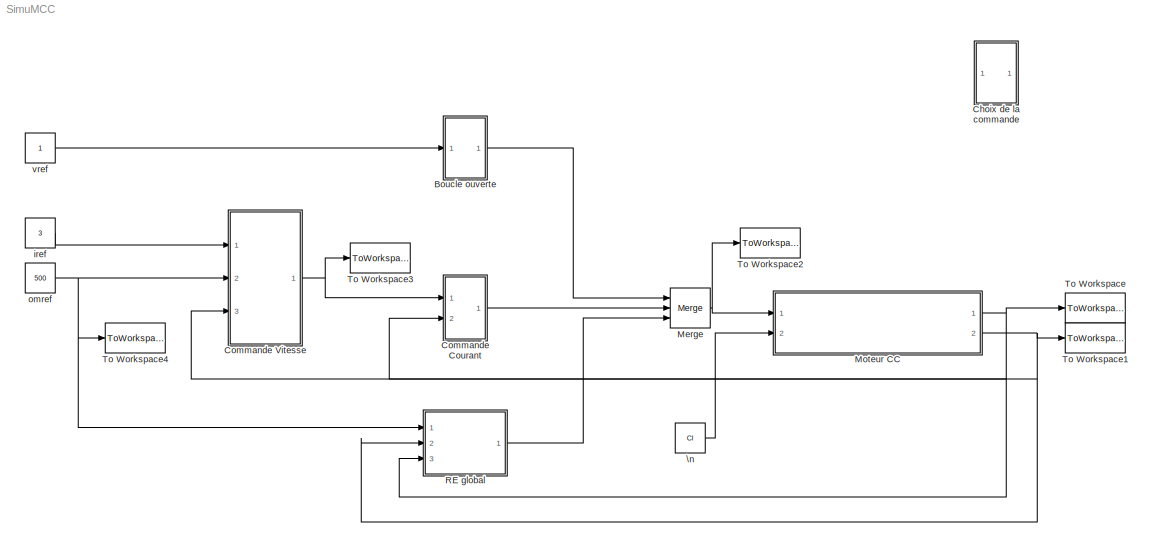
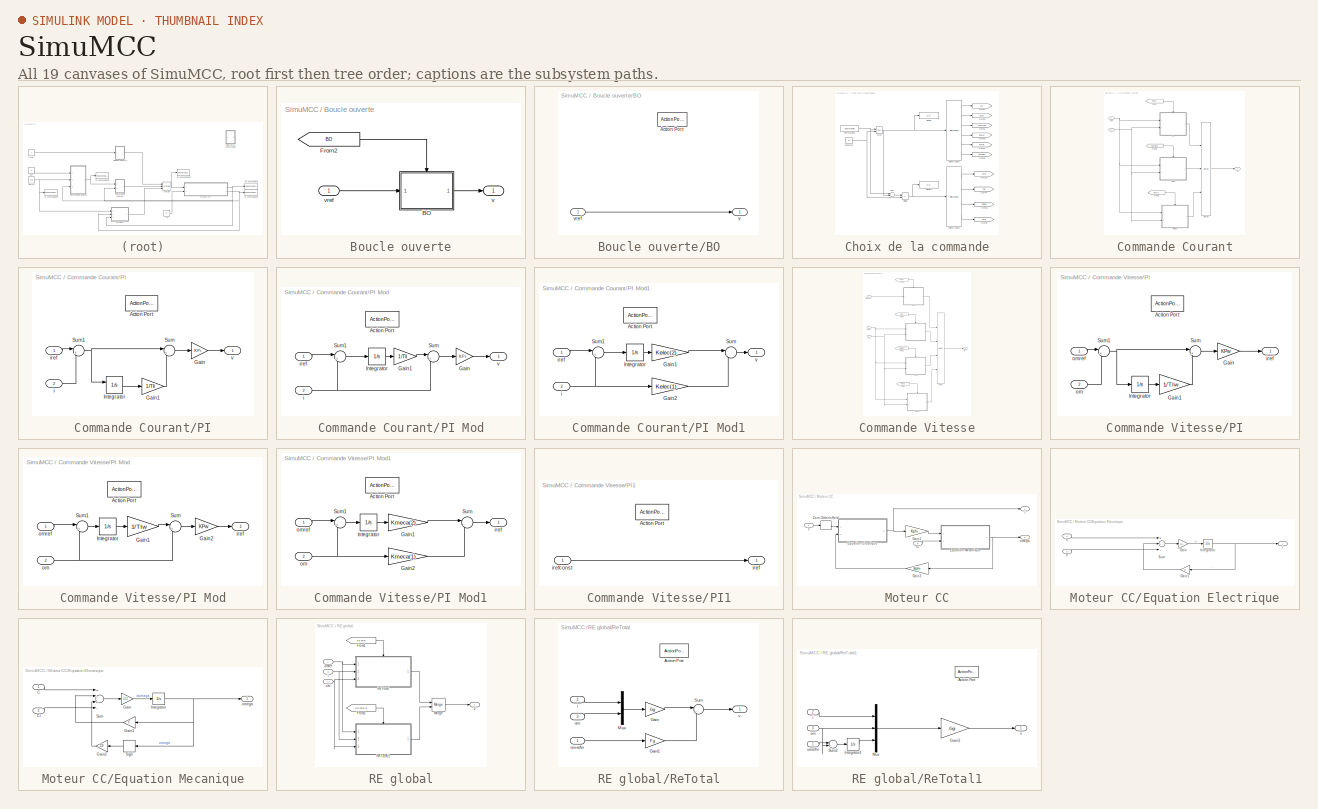
[diagram: thumbnail index - all 19 canvases of the model, root first then tree order]
MODEL SimuMCC
KIND model
BLOCK [SubSystem] Boucle ouverte
  Ports = [1, 1]
  RequestExecContextInheritance = off
  SID = 238
  Variant = off
BLOCK [SubSystem] Boucle ouverte/BO
  Ports = [1, 1, 0, 0, 0, 0, 0, 1]
  RequestExecContextInheritance = off
  SID = 111
  TreatAsAtomicUnit = on
  Variant = off
BLOCK [ActionPort] Boucle ouverte/BO/Action Port
  ActionType = case
  SID = 114
BLOCK [Outport] Boucle ouverte/BO/v
  IconDisplay = Port number
  SID = 120
BLOCK [Inport] Boucle ouverte/BO/vref
  IconDisplay = Port number
  SID = 112
BLOCK [From] Boucle ouverte/From2
  GotoTag = BO
  SID = 110
  TagVisibility = global
BLOCK [Outport] Boucle ouverte/v
  IconDisplay = Port number
  SID = 240
BLOCK [Inport] Boucle ouverte/vref
  IconDisplay = Port number
  SID = 239
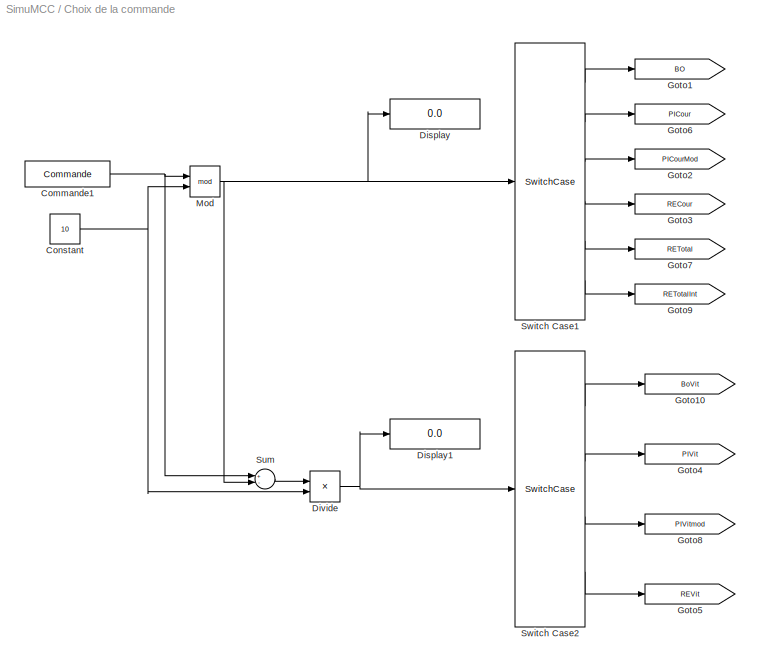
BLOCK [SubSystem] Choix de la commande
  Ports = []
  RequestExecContextInheritance = off
  SID = 49
  Variant = off
BLOCK [Constant] Choix de la commande/Commande1
  SID = 48
  Value = Commande
BLOCK [Constant] Choix de la commande/Constant
  SID = 211
  Value = 10
BLOCK [Display] Choix de la commande/Display
  Decimation = 1
  Ports = [1]
  SID = 236
BLOCK [Display] Choix de la commande/Display1
  Decimation = 1
  Ports = [1]
  SID = 237
BLOCK [Product] Choix de la commande/Divide
  InputSameDT = off
  Inputs = */
  OutDataTypeStr = Inherit: Inherit via internal rule
  Ports = [2, 1]
  RndMeth = Floor
  SID = 213
  SaturateOnIntegerOverflow = off
BLOCK [Goto] Choix de la commande/Goto1
  GotoTag = BO
  SID = 61
  TagVisibility = global
BLOCK [Goto] Choix de la commande/Goto10
  GotoTag = BoVit
  SID = 270
  TagVisibility = global
BLOCK [Goto] Choix de la commande/Goto2
  GotoTag = PICourMod
  SID = 87
  TagVisibility = global
BLOCK [Goto] Choix de la commande/Goto3
  GotoTag = RECour
  SID = 144
  TagVisibility = global
BLOCK [Goto] Choix de la commande/Goto4
  GotoTag = PIVit
  SID = 200
  TagVisibility = global
BLOCK [Goto] Choix de la commande/Goto5
  GotoTag = REVit
  SID = 201
  TagVisibility = global
BLOCK [Goto] Choix de la commande/Goto6
  GotoTag = PICour
  SID = 43
  TagVisibility = global
BLOCK [Goto] Choix de la commande/Goto7
  GotoTag = RETotal
  SID = 209
  TagVisibility = global
BLOCK [Goto] Choix de la commande/Goto8
  GotoTag = PIVitmod
  SID = 203
  TagVisibility = global
BLOCK [Goto] Choix de la commande/Goto9
  GotoTag = RETotalInt
  SID = 266
  TagVisibility = global
BLOCK [Math] Choix de la commande/Mod
  Operator = mod
  Ports = [2, 1]
  SID = 210
BLOCK [Sum] Choix de la commande/Sum
  InputSameDT = off
  Inputs = +-
  OutDataTypeStr = Inherit: Inherit via internal rule
  Ports = [2, 1]
  SID = 212
  SaturateOnIntegerOverflow = off
BLOCK [SwitchCase] Choix de la commande/Switch Case1
  CaseConditions = {0, 1,2,3,4,5}
  Ports = [1, 6]
  SID = 46
  ShowDefaultCase = off
BLOCK [SwitchCase] Choix de la commande/Switch Case2
  CaseConditions = {0,1,2,3}
  Ports = [1, 4]
  SID = 204
  ShowDefaultCase = off
BLOCK [SubSystem] Commande Courant
  Ports = [2, 1]
  RequestExecContextInheritance = off
  SID = 63
  Variant = off
BLOCK [From] Commande Courant/From
  GotoTag = PICour
  SID = 62
  TagVisibility = global
BLOCK [From] Commande Courant/From1
  GotoTag = PICourMod
  SID = 73
  TagVisibility = global
BLOCK [From] Commande Courant/From2
  GotoTag = RECour
  SID = 133
  TagVisibility = global
BLOCK [Merge] Commande Courant/Merge
  Inputs = 3
  Ports = [3, 1]
  SID = 124
BLOCK [SubSystem] Commande Courant/PI
  Ports = [2, 1, 0, 0, 0, 0, 0, 1]
  RequestExecContextInheritance = off
  SID = 50
  TreatAsAtomicUnit = on
  Variant = off
BLOCK [SubSystem] Commande Courant/PI Mod
  Ports = [2, 1, 0, 0, 0, 0, 0, 1]
  RequestExecContextInheritance = off
  SID = 74
  TreatAsAtomicUnit = on
  Variant = off
BLOCK [ActionPort] Commande Courant/PI Mod/Action Port
  ActionType = case
  SID = 86
BLOCK [Gain] Commande Courant/PI Mod/Gain
  Gain = KPi
  OutDataTypeStr = Inherit: Inherit via internal rule
  ParamDataTypeStr = Inherit: Inherit via internal rule
  SID = 127
  SaturateOnIntegerOverflow = off
BLOCK [Gain] Commande Courant/PI Mod/Gain1
  Gain = 1/TIi
  OutDataTypeStr = Inherit: Inherit via internal rule
  ParamDataTypeStr = Inherit: Inherit via internal rule
  SID = 128
  SaturateOnIntegerOverflow = off
BLOCK [Integrator] Commande Courant/PI Mod/Integrator
  Ports = [1, 1]
  SID = 129
BLOCK [Sum] Commande Courant/PI Mod/Sum
  IconShape = round
  InputSameDT = off
  Inputs = |+-
  OutDataTypeStr = Inherit: Inherit via internal rule
  Ports = [2, 1]
  SID = 130
  SaturateOnIntegerOverflow = off
BLOCK [Sum] Commande Courant/PI Mod/Sum1
  IconShape = round
  InputSameDT = off
  Inputs = |+-
  OutDataTypeStr = Inherit: Inherit via internal rule
  Ports = [2, 1]
  SID = 131
  SaturateOnIntegerOverflow = off
BLOCK [Inport] Commande Courant/PI Mod/i
  IconDisplay = Port number
  Port = 2
  SID = 76
BLOCK [Inport] Commande Courant/PI Mod/iref
  IconDisplay = Port number
  SID = 75
BLOCK [Outport] Commande Courant/PI Mod/v
  IconDisplay = Port number
  SID = 78
BLOCK [SubSystem] Commande Courant/PI Mod1
  Ports = [2, 1, 0, 0, 0, 0, 0, 1]
  RequestExecContextInheritance = off
  SID = 134
  TreatAsAtomicUnit = on
  Variant = off
BLOCK [ActionPort] Commande Courant/PI Mod1/Action Port
  ActionType = case
  SID = 137
BLOCK [Gain] Commande Courant/PI Mod1/Gain1
  Gain = Kelec(2)
  OutDataTypeStr = Inherit: Inherit via internal rule
  ParamDataTypeStr = Inherit: Inherit via internal rule
  SID = 139
  SaturateOnIntegerOverflow = off
BLOCK [Gain] Commande Courant/PI Mod1/Gain2
  Gain = Kelec(1)
  OutDataTypeStr = Inherit: Inherit via internal rule
  ParamDataTypeStr = Inherit: Inherit via internal rule
  SID = 146
  SaturateOnIntegerOverflow = off
BLOCK [Integrator] Commande Courant/PI Mod1/Integrator
  Ports = [1, 1]
  SID = 140
BLOCK [Sum] Commande Courant/PI Mod1/Sum
  IconShape = round
  InputSameDT = off
  Inputs = |--
  OutDataTypeStr = Inherit: Inherit via internal rule
  Ports = [2, 1]
  SID = 141
  SaturateOnIntegerOverflow = off
BLOCK [Sum] Commande Courant/PI Mod1/Sum1
  IconShape = round
  InputSameDT = off
  Inputs = |+-
  OutDataTypeStr = Inherit: Inherit via internal rule
  Ports = [2, 1]
  SID = 142
  SaturateOnIntegerOverflow = off
BLOCK [Inport] Commande Courant/PI Mod1/i
  IconDisplay = Port number
  Port = 2
  SID = 136
BLOCK [Inport] Commande Courant/PI Mod1/iref
  IconDisplay = Port number
  SID = 135
BLOCK [Outport] Commande Courant/PI Mod1/v
  IconDisplay = Port number
  SID = 143
BLOCK [ActionPort] Commande Courant/PI/Action Port
  ActionType = case
  SID = 52
BLOCK [Gain] Commande Courant/PI/Gain
  Gain = KPi
  OutDataTypeStr = Inherit: Inherit via internal rule
  ParamDataTypeStr = Inherit: Inherit via internal rule
  SID = 81
  SaturateOnIntegerOverflow = off
BLOCK [Gain] Commande Courant/PI/Gain1
  Gain = 1/TIi
  OutDataTypeStr = Inherit: Inherit via internal rule
  ParamDataTypeStr = Inherit: Inherit via internal rule
  SID = 84
  SaturateOnIntegerOverflow = off
BLOCK [Integrator] Commande Courant/PI/Integrator
  ExternalReset = rising
  Ports = [2, 1]
  SID = 85
BLOCK [Sum] Commande Courant/PI/Sum
  IconShape = round
  InputSameDT = off
  Inputs = |++
  OutDataTypeStr = Inherit: Inherit via internal rule
  Ports = [2, 1]
  SID = 82
  SaturateOnIntegerOverflow = off
BLOCK [Sum] Commande Courant/PI/Sum1
  IconShape = round
  InputSameDT = off
  Inputs = |+-
  OutDataTypeStr = Inherit: Inherit via internal rule
  Ports = [2, 1]
  SID = 83
  SaturateOnIntegerOverflow = off
BLOCK [Inport] Commande Courant/PI/i
  IconDisplay = Port number
  Port = 2
  SID = 68
BLOCK [Inport] Commande Courant/PI/iref
  IconDisplay = Port number
  SID = 67
BLOCK [Outport] Commande Courant/PI/v
  IconDisplay = Port number
  SID = 69
BLOCK [Inport] Commande Courant/i
  IconDisplay = Port number
  Port = 2
  SID = 65
BLOCK [Inport] Commande Courant/iref
  IconDisplay = Port number
  SID = 64
BLOCK [Outport] Commande Courant/v
  IconDisplay = Port number
  SID = 66
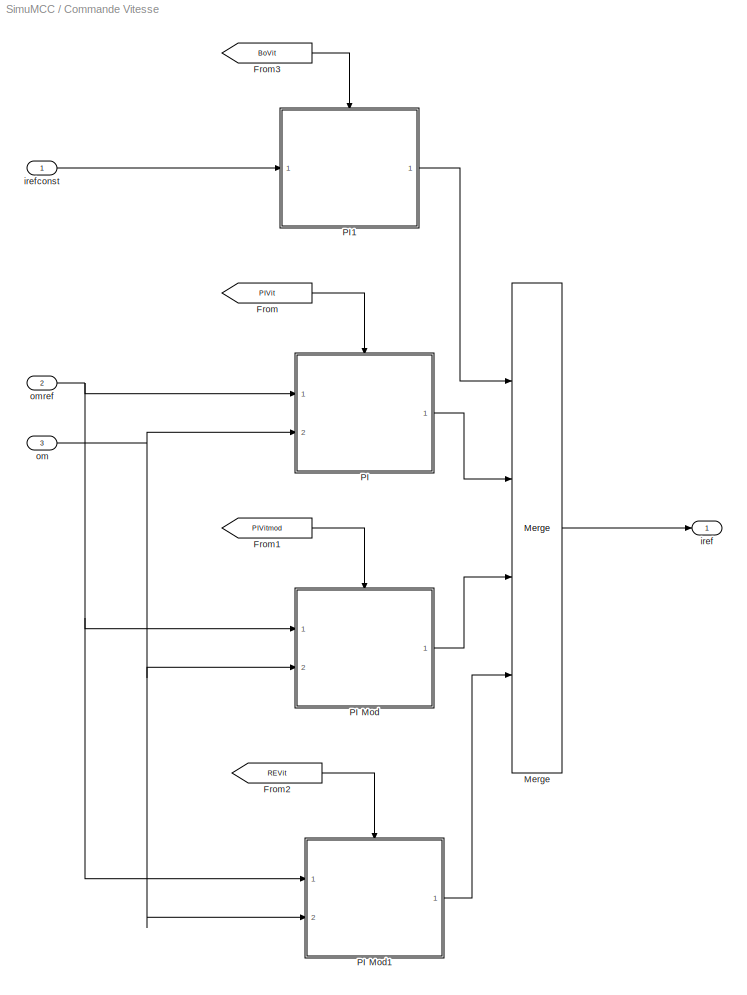
BLOCK [SubSystem] Commande Vitesse
  Ports = [3, 1]
  RequestExecContextInheritance = off
  SID = 148
  Variant = off
BLOCK [From] Commande Vitesse/From
  GotoTag = PIVit
  SID = 151
  TagVisibility = global
BLOCK [From] Commande Vitesse/From1
  GotoTag = PIVitmod
  SID = 152
  TagVisibility = global
BLOCK [From] Commande Vitesse/From2
  GotoTag = REVit
  SID = 153
  TagVisibility = global
BLOCK [From] Commande Vitesse/From3
  GotoTag = BoVit
  SID = 271
  TagVisibility = global
BLOCK [Merge] Commande Vitesse/Merge
  Inputs = 4
  Ports = [4, 1]
  SID = 154
BLOCK [SubSystem] Commande Vitesse/PI
  Ports = [2, 1, 0, 0, 0, 0, 0, 1]
  RequestExecContextInheritance = off
  SID = 155
  TreatAsAtomicUnit = on
  Variant = off
BLOCK [SubSystem] Commande Vitesse/PI Mod
  Ports = [2, 1, 0, 0, 0, 0, 0, 1]
  RequestExecContextInheritance = off
  SID = 165
  TreatAsAtomicUnit = on
  Variant = off
BLOCK [ActionPort] Commande Vitesse/PI Mod/Action Port
  ActionType = case
  SID = 168
BLOCK [Gain] Commande Vitesse/PI Mod/Gain1
  Gain = 1/TIw
  OutDataTypeStr = Inherit: Inherit via internal rule
  ParamDataTypeStr = Inherit: Inherit via internal rule
  SID = 198
  SaturateOnIntegerOverflow = off
BLOCK [Gain] Commande Vitesse/PI Mod/Gain2
  Gain = KPw
  OutDataTypeStr = Inherit: Inherit via internal rule
  ParamDataTypeStr = Inherit: Inherit via internal rule
  SID = 191
  SaturateOnIntegerOverflow = off
BLOCK [Integrator] Commande Vitesse/PI Mod/Integrator
  Ports = [1, 1]
  SID = 171
BLOCK [Sum] Commande Vitesse/PI Mod/Sum
  IconShape = round
  InputSameDT = off
  Inputs = |+-
  OutDataTypeStr = Inherit: Inherit via internal rule
  Ports = [2, 1]
  SID = 172
  SaturateOnIntegerOverflow = off
BLOCK [Sum] Commande Vitesse/PI Mod/Sum1
  IconShape = round
  InputSameDT = off
  Inputs = |+-
  OutDataTypeStr = Inherit: Inherit via internal rule
  Ports = [2, 1]
  SID = 173
  SaturateOnIntegerOverflow = off
BLOCK [Outport] Commande Vitesse/PI Mod/iref
  IconDisplay = Port number
  SID = 197
BLOCK [Inport] Commande Vitesse/PI Mod/om
  IconDisplay = Port number
  Port = 2
  SID = 190
BLOCK [Inport] Commande Vitesse/PI Mod/omref
  IconDisplay = Port number
  SID = 189
BLOCK [SubSystem] Commande Vitesse/PI Mod1
  Ports = [2, 1, 0, 0, 0, 0, 0, 1]
  RequestExecContextInheritance = off
  SID = 175
  TreatAsAtomicUnit = on
  Variant = off
BLOCK [ActionPort] Commande Vitesse/PI Mod1/Action Port
  ActionType = case
  SID = 178
BLOCK [Gain] Commande Vitesse/PI Mod1/Gain1
  Gain = Kmeca(2)
  OutDataTypeStr = Inherit: Inherit via internal rule
  ParamDataTypeStr = Inherit: Inherit via internal rule
  SID = 179
  SaturateOnIntegerOverflow = off
BLOCK [Gain] Commande Vitesse/PI Mod1/Gain2
  Gain = Kmeca(1)
  OutDataTypeStr = Inherit: Inherit via internal rule
  ParamDataTypeStr = Inherit: Inherit via internal rule
  SID = 180
  SaturateOnIntegerOverflow = off
BLOCK [Integrator] Commande Vitesse/PI Mod1/Integrator
  Ports = [1, 1]
  SID = 181
BLOCK [Sum] Commande Vitesse/PI Mod1/Sum
  IconShape = round
  InputSameDT = off
  Inputs = |--
  OutDataTypeStr = Inherit: Inherit via internal rule
  Ports = [2, 1]
  SID = 182
  SaturateOnIntegerOverflow = off
BLOCK [Sum] Commande Vitesse/PI Mod1/Sum1
  IconShape = round
  InputSameDT = off
  Inputs = |+-
  OutDataTypeStr = Inherit: Inherit via internal rule
  Ports = [2, 1]
  SID = 183
  SaturateOnIntegerOverflow = off
BLOCK [Outport] Commande Vitesse/PI Mod1/iref
  IconDisplay = Port number
  SID = 184
BLOCK [Inport] Commande Vitesse/PI Mod1/om
  IconDisplay = Port number
  Port = 2
  SID = 177
BLOCK [Inport] Commande Vitesse/PI Mod1/omref
  IconDisplay = Port number
  SID = 176
BLOCK [ActionPort] Commande Vitesse/PI/Action Port
  ActionType = case
  SID = 158
BLOCK [Gain] Commande Vitesse/PI/Gain
  Gain = KPw
  OutDataTypeStr = Inherit: Inherit via internal rule
  ParamDataTypeStr = Inherit: Inherit via internal rule
  SID = 159
  SaturateOnIntegerOverflow = off
BLOCK [Gain] Commande Vitesse/PI/Gain1
  Gain = 1/TIw
  OutDataTypeStr = Inherit: Inherit via internal rule
  ParamDataTypeStr = Inherit: Inherit via internal rule
  SID = 160
  SaturateOnIntegerOverflow = off
BLOCK [Integrator] Commande Vitesse/PI/Integrator
  Ports = [1, 1]
  SID = 161
BLOCK [Sum] Commande Vitesse/PI/Sum
  IconShape = round
  InputSameDT = off
  Inputs = |++
  OutDataTypeStr = Inherit: Inherit via internal rule
  Ports = [2, 1]
  SID = 162
  SaturateOnIntegerOverflow = off
BLOCK [Sum] Commande Vitesse/PI/Sum1
  IconShape = round
  InputSameDT = off
  Inputs = |+-
  OutDataTypeStr = Inherit: Inherit via internal rule
  Ports = [2, 1]
  SID = 163
  SaturateOnIntegerOverflow = off
BLOCK [Outport] Commande Vitesse/PI/iref
  IconDisplay = Port number
  SID = 164
BLOCK [Inport] Commande Vitesse/PI/om
  IconDisplay = Port number
  Port = 2
  SID = 157
BLOCK [Inport] Commande Vitesse/PI/omref
  IconDisplay = Port number
  SID = 156
BLOCK [SubSystem] Commande Vitesse/PI1
  Ports = [1, 1, 0, 0, 0, 0, 0, 1]
  RequestExecContextInheritance = off
  SID = 222
  TreatAsAtomicUnit = on
  Variant = off
BLOCK [ActionPort] Commande Vitesse/PI1/Action Port
  ActionType = case
  SID = 225
BLOCK [Outport] Commande Vitesse/PI1/iref
  IconDisplay = Port number
  SID = 231
BLOCK [Inport] Commande Vitesse/PI1/irefconst
  IconDisplay = Port number
  SID = 223
BLOCK [Outport] Commande Vitesse/iref
  IconDisplay = Port number
  SID = 185
BLOCK [Inport] Commande Vitesse/irefconst
  IconDisplay = Port number
  SID = 232
BLOCK [Inport] Commande Vitesse/om
  IconDisplay = Port number
  Port = 3
  SID = 150
BLOCK [Inport] Commande Vitesse/omref
  IconDisplay = Port number
  Port = 2
  SID = 149
BLOCK [Merge] Merge
  Inputs = 3
  Ports = [3, 1]
  SID = 70
BLOCK [SubSystem] Moteur CC
  Ports = [2, 2]
  RequestExecContextInheritance = off
  SID = 29
  Variant = off
BLOCK [Inport] Moteur CC/Cl
  IconDisplay = Port number
  Port = 2
  SID = 207
BLOCK [SubSystem] Moteur CC/Equation Electrique
  Ports = [2, 1]
  RequestExecContextInheritance = off
  SID = 9
  Variant = off
BLOCK [Gain] Moteur CC/Equation Electrique/Gain
  Gain = 1/L
  OutDataTypeStr = Inherit: Inherit via internal rule
  ParamDataTypeStr = Inherit: Inherit via internal rule
  SID = 2
  SaturateOnIntegerOverflow = off
BLOCK [Gain] Moteur CC/Equation Electrique/Gain1
  Gain = R
  OutDataTypeStr = Inherit: Inherit via internal rule
  ParamDataTypeStr = Inherit: Inherit via internal rule
  SID = 6
  SaturateOnIntegerOverflow = off
BLOCK [Integrator] Moteur CC/Equation Electrique/Integrator
  Ports = [1, 1]
  SID = 1
BLOCK [Sum] Moteur CC/Equation Electrique/Sum
  InputSameDT = off
  Inputs = +--
  OutDataTypeStr = Inherit: Inherit via internal rule
  Ports = [3, 1]
  SID = 4
  SaturateOnIntegerOverflow = off
BLOCK [Inport] Moteur CC/Equation Electrique/e
  IconDisplay = Port number
  Port = 2
  SID = 11
BLOCK [Outport] Moteur CC/Equation Electrique/i
  IconDisplay = Port number
  SID = 12
BLOCK [Inport] Moteur CC/Equation Electrique/v
  IconDisplay = Port number
  SID = 10
BLOCK [SubSystem] Moteur CC/Equation Mecanique
  Ports = [2, 1]
  RequestExecContextInheritance = off
  SID = 13
  Variant = off
BLOCK [Inport] Moteur CC/Equation Mecanique/C
  IconDisplay = Port number
  SID = 14
BLOCK [Inport] Moteur CC/Equation Mecanique/Cl
  IconDisplay = Port number
  Port = 2
  SID = 206
BLOCK [Gain] Moteur CC/Equation Mecanique/Gain
  Gain = 1/J
  OutDataTypeStr = Inherit: Inherit via internal rule
  ParamDataTypeStr = Inherit: Inherit via internal rule
  SID = 16
  SaturateOnIntegerOverflow = off
BLOCK [Gain] Moteur CC/Equation Mecanique/Gain1
  Gain = F
  OutDataTypeStr = Inherit: Inherit via internal rule
  ParamDataTypeStr = Inherit: Inherit via internal rule
  SID = 17
  SaturateOnIntegerOverflow = off
BLOCK [Gain] Moteur CC/Equation Mecanique/Gain2
  Gain = C0
  OutDataTypeStr = Inherit: Inherit via internal rule
  ParamDataTypeStr = Inherit: Inherit via internal rule
  SID = 22
  SaturateOnIntegerOverflow = off
BLOCK [Integrator] Moteur CC/Equation Mecanique/Integrator
  Ports = [1, 1]
  SID = 18
BLOCK [Signum] Moteur CC/Equation Mecanique/Sign
  SID = 21
BLOCK [Sum] Moteur CC/Equation Mecanique/Sum
  InputSameDT = off
  Inputs = +-+-
  OutDataTypeStr = Inherit: Inherit via internal rule
  Ports = [4, 1]
  SID = 19
  SaturateOnIntegerOverflow = off
BLOCK [Outport] Moteur CC/Equation Mecanique/omega
  IconDisplay = Port number
  SID = 20
BLOCK [Gain] Moteur CC/Gain1
  Gain = Kphi
  OutDataTypeStr = Inherit: Inherit via internal rule
  ParamDataTypeStr = Inherit: Inherit via internal rule
  SID = 147
  SaturateOnIntegerOverflow = off
BLOCK [Gain] Moteur CC/Gain3  
  Gain = Kphi
  OutDataTypeStr = Inherit: Inherit via internal rule
  ParamDataTypeStr = Inherit: Inherit via internal rule
  SID = 27
  SaturateOnIntegerOverflow = off
BLOCK [ZeroOrderHold] Moteur CC/Zero-Order\nHold
  SID = 272
  SampleTime = Ts
BLOCK [Outport] Moteur CC/i
  IconDisplay = Port number
  SID = 31
BLOCK [Outport] Moteur CC/omega
  IconDisplay = Port number
  Port = 2
  SID = 32
BLOCK [Inport] Moteur CC/v
  IconDisplay = Port number
  SID = 30
BLOCK [SubSystem] RE global
  Ports = [3, 1]
  RequestExecContextInheritance = off
  SID = 241
  Variant = off
BLOCK [From] RE global/From1
  GotoTag = RETotal
  SID = 218
  TagVisibility = global
BLOCK [From] RE global/From2
  GotoTag = RETotalInt
  SID = 253
  TagVisibility = global
BLOCK [Merge] RE global/Merge
  Ports = [2, 1]
  SID = 265
BLOCK [SubSystem] RE global/ReTotal
  Ports = [3, 1, 0, 0, 0, 0, 0, 1]
  RequestExecContextInheritance = off
  SID = 214
  TreatAsAtomicUnit = on
  Variant = off
BLOCK [Inport] RE global/ReTotal/ i
  IconDisplay = Port number
  Port = 2
  SID = 235
BLOCK [Inport] RE global/ReTotal/ om
  IconDisplay = Port number
  Port = 3
  SID = 234
BLOCK [ActionPort] RE global/ReTotal/Action Port
  ActionType = case
  SID = 216
BLOCK [Gain] RE global/ReTotal/Gain
  Gain = Gg
  Multiplication = Matrix(K*u)
  OutDataTypeStr = Inherit: Inherit via internal rule
  ParamDataTypeStr = Inherit: Inherit via internal rule
  SID = 247
  SaturateOnIntegerOverflow = off
BLOCK [Gain] RE global/ReTotal/Gain1
  Gain = Fg
  Multiplication = Matrix(K*u)
  OutDataTypeStr = Inherit: Inherit via internal rule
  ParamDataTypeStr = Inherit: Inherit via internal rule
  SID = 249
  SaturateOnIntegerOverflow = off
BLOCK [Mux] RE global/ReTotal/Mux
  DisplayOption = bar
  Inputs = 2
  Ports = [2, 1]
  SID = 246
BLOCK [Sum] RE global/ReTotal/Sum
  IconShape = round
  InputSameDT = off
  Inputs = |-+
  OutDataTypeStr = Inherit: Inherit via internal rule
  Ports = [2, 1]
  SID = 248
  SaturateOnIntegerOverflow = off
BLOCK [Inport] RE global/ReTotal/omref\n
  IconDisplay = Port number
  SID = 215
BLOCK [Outport] RE global/ReTotal/v
  IconDisplay = Port number
  SID = 217
BLOCK [SubSystem] RE global/ReTotal1
  Ports = [3, 1, 0, 0, 0, 0, 0, 1]
  RequestExecContextInheritance = off
  SID = 254
  TreatAsAtomicUnit = on
  Variant = off
BLOCK [Inport] RE global/ReTotal1/ i
  IconDisplay = Port number
  Port = 2
  SID = 256
BLOCK [Inport] RE global/ReTotal1/ om
  IconDisplay = Port number
  Port = 3
  SID = 257
BLOCK [ActionPort] RE global/ReTotal1/Action Port
  ActionType = case
  SID = 258
BLOCK [Gain] RE global/ReTotal1/Gain3
  Gain = -Ggi
  Multiplication = Matrix(K*u)
  OutDataTypeStr = Inherit: Inherit via internal rule
  ParamDataTypeStr = Inherit: Inherit via internal rule
  SID = 277
  SaturateOnIntegerOverflow = off
BLOCK [Integrator] RE global/ReTotal1/Integrator1
  Ports = [1, 1]
  SID = 279
BLOCK [Mux] RE global/ReTotal1/Mux
  DisplayOption = bar
  Inputs = 3
  Ports = [3, 1]
  SID = 261
BLOCK [Sum] RE global/ReTotal1/Sum2
  IconShape = round
  InputSameDT = off
  Inputs = |+-
  OutDataTypeStr = Inherit: Inherit via internal rule
  Ports = [2, 1]
  SID = 278
  SaturateOnIntegerOverflow = off
BLOCK [Inport] RE global/ReTotal1/omref\n
  IconDisplay = Port number
  SID = 255
BLOCK [Outport] RE global/ReTotal1/v
  IconDisplay = Port number
  SID = 263
BLOCK [Inport] RE global/i
  IconDisplay = Port number
  Port = 3
  SID = 244
BLOCK [Inport] RE global/om
  IconDisplay = Port number
  Port = 2
  SID = 243
BLOCK [Inport] RE global/omref
  IconDisplay = Port number
  SID = 242
BLOCK [Outport] RE global/v
  IconDisplay = Port number
  SID = 245
BLOCK [ToWorkspace] To Workspace
  FixptAsFi = on
  MaxDataPoints = inf
  Ports = [1]
  SID = 34
  SampleTime = -1
  Save2DSignal = 3-D array (concatenate along third dimension)
  SaveFormat = Timeseries
  VariableName = i
BLOCK [ToWorkspace] To Workspace1
  FixptAsFi = on
  MaxDataPoints = inf
  Ports = [1]
  SID = 35
  SampleTime = -1
  Save2DSignal = 3-D array (concatenate along third dimension)
  SaveFormat = Timeseries
  VariableName = omega
BLOCK [ToWorkspace] To Workspace2
  FixptAsFi = on
  MaxDataPoints = inf
  Ports = [1]
  SID = 36
  SampleTime = -1
  Save2DSignal = 3-D array (concatenate along third dimension)
  SaveFormat = Timeseries
  VariableName = v
BLOCK [ToWorkspace] To Workspace3
  FixptAsFi = on
  MaxDataPoints = inf
  Ports = [1]
  SID = 80
  SampleTime = -1
  Save2DSignal = 3-D array (concatenate along third dimension)
  SaveFormat = Timeseries
  VariableName = iref
BLOCK [ToWorkspace] To Workspace4
  FixptAsFi = on
  MaxDataPoints = inf
  Ports = [1]
  SID = 220
  SampleTime = -1
  Save2DSignal = 3-D array (concatenate along third dimension)
  SaveFormat = Timeseries
  VariableName = omref
BLOCK [Constant] \n
  SID = 208
  Value = Cl
BLOCK [Constant] iref
  SID = 221
  Value = 3
BLOCK [Constant] omref
  SID = 79
  Value = 500
BLOCK [Constant] vref
  SID = 122
LINE Boucle ouverte/BO/vref:1 -> Boucle ouverte/BO/v:1
LINE Boucle ouverte/BO:1 -> Boucle ouverte/v:1
LINE Boucle ouverte/From2:1 -> Boucle ouverte/BO:ifaction
LINE Boucle ouverte/vref:1 -> Boucle ouverte/BO:1
LINE Boucle ouverte:1 -> Merge:1
NET Choix de la commande/Commande1:1 -> Choix de la commande/Mod:1, Choix de la commande/Sum:1
NET Choix de la commande/Constant:1 -> Choix de la commande/Divide:2, Choix de la commande/Mod:2
NET Choix de la commande/Divide:1 -> Choix de la commande/Display1:1, Choix de la commande/Switch Case2:1
NET Choix de la commande/Mod:1 -> Choix de la commande/Display:1, Choix de la commande/Sum:2, Choix de la commande/Switch Case1:1
LINE Choix de la commande/Sum:1 -> Choix de la commande/Divide:1
LINE Choix de la commande/Switch Case1:1 -> Choix de la commande/Goto1:1
LINE Choix de la commande/Switch Case1:2 -> Choix de la commande/Goto6:1
LINE Choix de la commande/Switch Case1:3 -> Choix de la commande/Goto2:1
LINE Choix de la commande/Switch Case1:4 -> Choix de la commande/Goto3:1
LINE Choix de la commande/Switch Case1:5 -> Choix de la commande/Goto7:1
LINE Choix de la commande/Switch Case1:6 -> Choix de la commande/Goto9:1
LINE Choix de la commande/Switch Case2:1 -> Choix de la commande/Goto10:1
LINE Choix de la commande/Switch Case2:2 -> Choix de la commande/Goto4:1
LINE Choix de la commande/Switch Case2:3 -> Choix de la commande/Goto8:1
LINE Choix de la commande/Switch Case2:4 -> Choix de la commande/Goto5:1
LINE Commande Courant/From1:1 -> Commande Courant/PI Mod:ifaction
LINE Commande Courant/From2:1 -> Commande Courant/PI Mod1:ifaction
LINE Commande Courant/From:1 -> Commande Courant/PI:ifaction
LINE Commande Courant/Merge:1 -> Commande Courant/v:1
LINE Commande Courant/PI Mod/Gain1:1 -> Commande Courant/PI Mod/Sum:1
LINE Commande Courant/PI Mod/Gain:1 -> Commande Courant/PI Mod/v:1
LINE Commande Courant/PI Mod/Integrator:1 -> Commande Courant/PI Mod/Gain1:1
LINE Commande Courant/PI Mod/Sum1:1 -> Commande Courant/PI Mod/Integrator:1
LINE Commande Courant/PI Mod/Sum:1 -> Commande Courant/PI Mod/Gain:1
NET Commande Courant/PI Mod/i:1 -> Commande Courant/PI Mod/Sum1:2, Commande Courant/PI Mod/Sum:2
LINE Commande Courant/PI Mod/iref:1 -> Commande Courant/PI Mod/Sum1:1
LINE Commande Courant/PI Mod1/Gain1:1 -> Commande Courant/PI Mod1/Sum:1
LINE Commande Courant/PI Mod1/Gain2:1 -> Commande Courant/PI Mod1/Sum:2
LINE Commande Courant/PI Mod1/Integrator:1 -> Commande Courant/PI Mod1/Gain1:1
LINE Commande Courant/PI Mod1/Sum1:1 -> Commande Courant/PI Mod1/Integrator:1
LINE Commande Courant/PI Mod1/Sum:1 -> Commande Courant/PI Mod1/v:1
NET Commande Courant/PI Mod1/i:1 -> Commande Courant/PI Mod1/Gain2:1, Commande Courant/PI Mod1/Sum1:2
LINE Commande Courant/PI Mod1/iref:1 -> Commande Courant/PI Mod1/Sum1:1
LINE Commande Courant/PI Mod1:1 -> Commande Courant/Merge:3
LINE Commande Courant/PI Mod:1 -> Commande Courant/Merge:2
LINE Commande Courant/PI/Gain1:1 -> Commande Courant/PI/Sum:2
LINE Commande Courant/PI/Gain:1 -> Commande Courant/PI/v:1
LINE Commande Courant/PI/Integrator:1 -> Commande Courant/PI/Gain1:1
NET Commande Courant/PI/Sum1:1 -> Commande Courant/PI/Integrator:1, Commande Courant/PI/Sum:1
LINE Commande Courant/PI/Sum:1 -> Commande Courant/PI/Gain:1
LINE Commande Courant/PI/i:1 -> Commande Courant/PI/Sum1:2
LINE Commande Courant/PI/iref:1 -> Commande Courant/PI/Sum1:1
LINE Commande Courant/PI:1 -> Commande Courant/Merge:1
NET Commande Courant/i:1 -> Commande Courant/PI Mod1:2, Commande Courant/PI Mod:2, Commande Courant/PI:2
NET Commande Courant/iref:1 -> Commande Courant/PI Mod1:1, Commande Courant/PI Mod:1, Commande Courant/PI:1
LINE Commande Courant:1 -> Merge:2
LINE Commande Vitesse/From1:1 -> Commande Vitesse/PI Mod:ifaction
LINE Commande Vitesse/From2:1 -> Commande Vitesse/PI Mod1:ifaction
LINE Commande Vitesse/From3:1 -> Commande Vitesse/PI1:ifaction
LINE Commande Vitesse/From:1 -> Commande Vitesse/PI:ifaction
LINE Commande Vitesse/Merge:1 -> Commande Vitesse/iref:1
LINE Commande Vitesse/PI Mod/Gain1:1 -> Commande Vitesse/PI Mod/Sum:1
LINE Commande Vitesse/PI Mod/Gain2:1 -> Commande Vitesse/PI Mod/iref:1
LINE Commande Vitesse/PI Mod/Integrator:1 -> Commande Vitesse/PI Mod/Gain1:1
LINE Commande Vitesse/PI Mod/Sum1:1 -> Commande Vitesse/PI Mod/Integrator:1
LINE Commande Vitesse/PI Mod/Sum:1 -> Commande Vitesse/PI Mod/Gain2:1
NET Commande Vitesse/PI Mod/om:1 -> Commande Vitesse/PI Mod/Sum1:2, Commande Vitesse/PI Mod/Sum:2
LINE Commande Vitesse/PI Mod/omref:1 -> Commande Vitesse/PI Mod/Sum1:1
LINE Commande Vitesse/PI Mod1/Gain1:1 -> Commande Vitesse/PI Mod1/Sum:1
LINE Commande Vitesse/PI Mod1/Gain2:1 -> Commande Vitesse/PI Mod1/Sum:2
LINE Commande Vitesse/PI Mod1/Integrator:1 -> Commande Vitesse/PI Mod1/Gain1:1
LINE Commande Vitesse/PI Mod1/Sum1:1 -> Commande Vitesse/PI Mod1/Integrator:1
LINE Commande Vitesse/PI Mod1/Sum:1 -> Commande Vitesse/PI Mod1/iref:1
NET Commande Vitesse/PI Mod1/om:1 -> Commande Vitesse/PI Mod1/Gain2:1, Commande Vitesse/PI Mod1/Sum1:2
LINE Commande Vitesse/PI Mod1/omref:1 -> Commande Vitesse/PI Mod1/Sum1:1
LINE Commande Vitesse/PI Mod1:1 -> Commande Vitesse/Merge:4
LINE Commande Vitesse/PI Mod:1 -> Commande Vitesse/Merge:3
LINE Commande Vitesse/PI/Gain1:1 -> Commande Vitesse/PI/Sum:2
LINE Commande Vitesse/PI/Gain:1 -> Commande Vitesse/PI/iref:1
LINE Commande Vitesse/PI/Integrator:1 -> Commande Vitesse/PI/Gain1:1
NET Commande Vitesse/PI/Sum1:1 -> Commande Vitesse/PI/Integrator:1, Commande Vitesse/PI/Sum:1
LINE Commande Vitesse/PI/Sum:1 -> Commande Vitesse/PI/Gain:1
LINE Commande Vitesse/PI/om:1 -> Commande Vitesse/PI/Sum1:2
LINE Commande Vitesse/PI/omref:1 -> Commande Vitesse/PI/Sum1:1
LINE Commande Vitesse/PI1/irefconst:1 -> Commande Vitesse/PI1/iref:1
LINE Commande Vitesse/PI1:1 -> Commande Vitesse/Merge:1
LINE Commande Vitesse/PI:1 -> Commande Vitesse/Merge:2
LINE Commande Vitesse/irefconst:1 -> Commande Vitesse/PI1:1
NET Commande Vitesse/om:1 -> Commande Vitesse/PI Mod1:2, Commande Vitesse/PI Mod:2, Commande Vitesse/PI:2
NET Commande Vitesse/omref:1 -> Commande Vitesse/PI Mod1:1, Commande Vitesse/PI Mod:1, Commande Vitesse/PI:1
NET Commande Vitesse:1 -> Commande Courant:1, To Workspace3:1
NET Merge:1 -> Moteur CC:1, To Workspace2:1
LINE Moteur CC/Cl:1 -> Moteur CC/Equation Mecanique:2
LINE Moteur CC/Equation Electrique/Gain1:1 -> Moteur CC/Equation Electrique/Sum:2
LINE Moteur CC/Equation Electrique/Gain:1 -> Moteur CC/Equation Electrique/Integrator:1
NET Moteur CC/Equation Electrique/Integrator:1 -> Moteur CC/Equation Electrique/Gain1:1, Moteur CC/Equation Electrique/i:1
LINE Moteur CC/Equation Electrique/Sum:1 -> Moteur CC/Equation Electrique/Gain:1
LINE Moteur CC/Equation Electrique/e:1 -> Moteur CC/Equation Electrique/Sum:3
LINE Moteur CC/Equation Electrique/v:1 -> Moteur CC/Equation Electrique/Sum:1
NET Moteur CC/Equation Electrique:1 -> Moteur CC/Gain1:1, Moteur CC/i:1
LINE Moteur CC/Equation Mecanique/C:1 -> Moteur CC/Equation Mecanique/Sum:1
LINE Moteur CC/Equation Mecanique/Cl:1 -> Moteur CC/Equation Mecanique/Sum:4
LINE Moteur CC/Equation Mecanique/Gain1:1 -> Moteur CC/Equation Mecanique/Sum:2
LINE Moteur CC/Equation Mecanique/Gain2:1 -> Moteur CC/Equation Mecanique/Sum:3
LINE Moteur CC/Equation Mecanique/Gain:1 -> Moteur CC/Equation Mecanique/Integrator:1
NET Moteur CC/Equation Mecanique/Integrator:1 -> Moteur CC/Equation Mecanique/Gain1:1, Moteur CC/Equation Mecanique/Sign:1, Moteur CC/Equation Mecanique/omega:1
LINE Moteur CC/Equation Mecanique/Sign:1 -> Moteur CC/Equation Mecanique/Gain2:1
LINE Moteur CC/Equation Mecanique/Sum:1 -> Moteur CC/Equation Mecanique/Gain:1
NET Moteur CC/Equation Mecanique:1 -> Moteur CC/Gain3  :1, Moteur CC/omega:1
LINE Moteur CC/Gain1:1 -> Moteur CC/Equation Mecanique:1
LINE Moteur CC/Gain3  :1 -> Moteur CC/Equation Electrique:2
LINE Moteur CC/Zero-Order\nHold:1 -> Moteur CC/Equation Electrique:1
LINE Moteur CC/v:1 -> Moteur CC/Zero-Order\nHold:1
NET Moteur CC:1 -> Commande Courant:2, RE global:3, To Workspace:1
NET Moteur CC:2 -> Commande Vitesse:3, RE global:2, To Workspace1:1
LINE RE global/From1:1 -> RE global/ReTotal:ifaction
LINE RE global/From2:1 -> RE global/ReTotal1:ifaction
LINE RE global/Merge:1 -> RE global/v:1
LINE RE global/ReTotal/ i:1 -> RE global/ReTotal/Mux:1
LINE RE global/ReTotal/ om:1 -> RE global/ReTotal/Mux:2
LINE RE global/ReTotal/Gain1:1 -> RE global/ReTotal/Sum:2
LINE RE global/ReTotal/Gain:1 -> RE global/ReTotal/Sum:1
LINE RE global/ReTotal/Mux:1 -> RE global/ReTotal/Gain:1
LINE RE global/ReTotal/Sum:1 -> RE global/ReTotal/v:1
LINE RE global/ReTotal/omref\n:1 -> RE global/ReTotal/Gain1:1
LINE RE global/ReTotal1/ i:1 -> RE global/ReTotal1/Mux:1
NET RE global/ReTotal1/ om:1 -> RE global/ReTotal1/Mux:2, RE global/ReTotal1/Sum2:2
LINE RE global/ReTotal1/Gain3:1 -> RE global/ReTotal1/v:1
LINE RE global/ReTotal1/Integrator1:1 -> RE global/ReTotal1/Mux:3
LINE RE global/ReTotal1/Mux:1 -> RE global/ReTotal1/Gain3:1
LINE RE global/ReTotal1/Sum2:1 -> RE global/ReTotal1/Integrator1:1
LINE RE global/ReTotal1/omref\n:1 -> RE global/ReTotal1/Sum2:1
LINE RE global/ReTotal1:1 -> RE global/Merge:2
LINE RE global/ReTotal:1 -> RE global/Merge:1
NET RE global/i:1 -> RE global/ReTotal1:2, RE global/ReTotal:2
NET RE global/om:1 -> RE global/ReTotal1:3, RE global/ReTotal:3
NET RE global/omref:1 -> RE global/ReTotal1:1, RE global/ReTotal:1
LINE RE global:1 -> Merge:3
LINE \n:1 -> Moteur CC:2
LINE iref:1 -> Commande Vitesse:1
NET omref:1 -> Commande Vitesse:2, RE global:1, To Workspace4:1
LINE vref:1 -> Boucle ouverte:1
note: NET lines group one-source signal fan-out (src -> all destinations, sorted); 1:1 wires keep LINE
